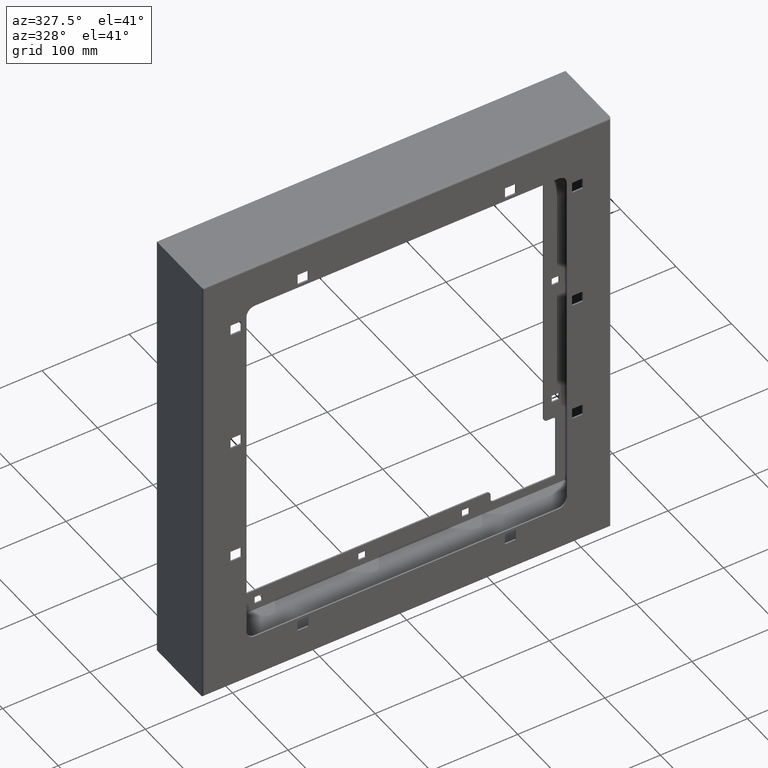
[diagram: clean part render]
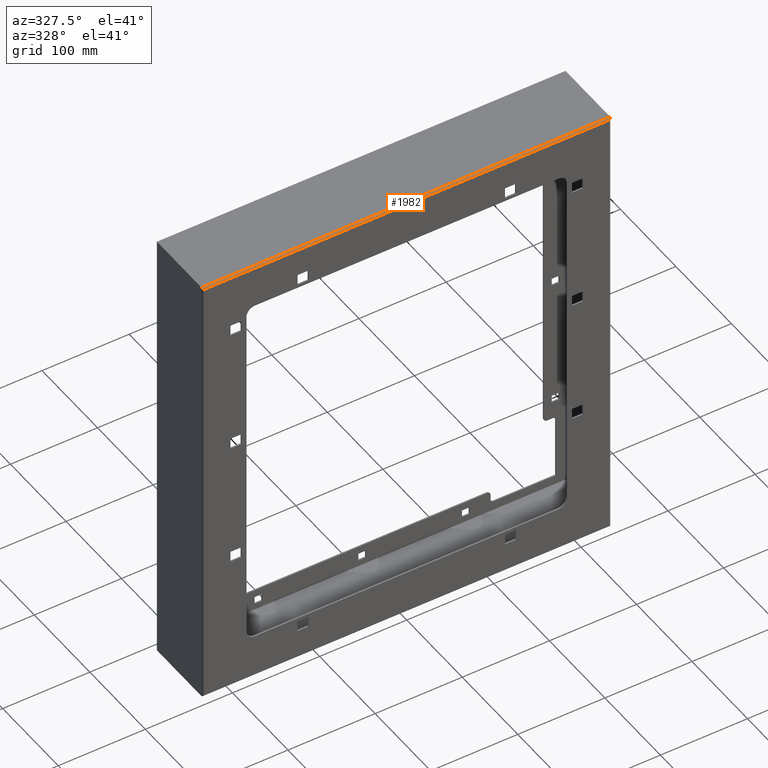
[diagram: same view with one face highlighted and labeled with its STEP entity id]
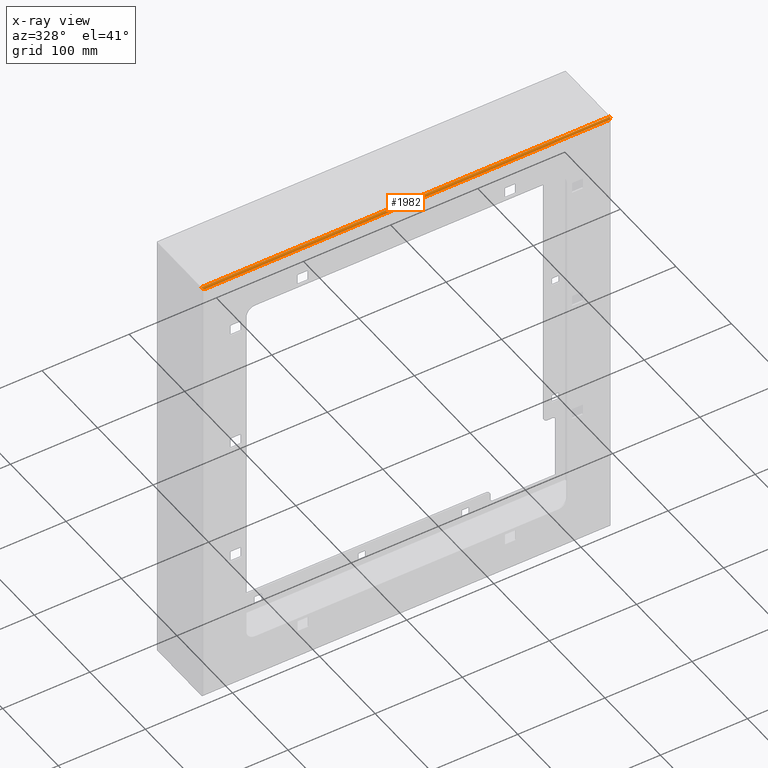
[diagram: x-ray of the same camera — body ghosted, the highlighted face saturated]
A machine part, auxiliary view. The second image highlights one B-rep face of the part: STEP entity #1982.
The next image is the same camera in x-ray: the body ghosted, the highlighted face saturated — about 0% of this face is hidden behind the body in this view.
In plain terms, the highlighted cylindrical surface (edge-blend (fillet) strip) has radius 2 mm, axis along (-1, 0, 0).
Its self-contained STEP definition (entity closure, byte-faithful):
#12 = CARTESIAN_POINT ( 'NONE',  ( 234.5000000000000300, 1.999999999999988000, 262.0000000000000000 ) ) ;
#130 = CARTESIAN_POINT ( 'NONE',  ( -234.5000000000000300, 1.999999999999988000, 262.0000000000000000 ) ) ;
#504 = CARTESIAN_POINT ( 'NONE',  ( 234.5000000000000300, 2.000000000000001800, 262.0000000000000000 ) ) ;
#508 = DIRECTION ( 'NONE',  ( 1.000000000000000000, 0.0000000000000000000, 0.0000000000000000000 ) ) ;
#521 = VERTEX_POINT ( 'NONE', #12 ) ;
#524 = VERTEX_POINT ( 'NONE', #130 ) ;
#1433 = DIRECTION ( 'NONE',  ( 0.0000000000000000000, 0.0000000000000000000, 1.000000000000000000 ) ) ;
#1434 = CARTESIAN_POINT ( 'NONE',  ( -234.5000000000000300, 2.000000000000001800, 260.0000000000000000 ) ) ;
#1435 = DIRECTION ( 'NONE',  ( -1.000000000000000000, 0.0000000000000000000, 0.0000000000000000000 ) ) ;
#1671 = AXIS2_PLACEMENT_3D ( 'NONE', #1434, #1435, #1433 ) ;
#1982 = ADVANCED_FACE ( 'NONE', ( #3846 ), #3851, .T. ) ;
#2551 = CARTESIAN_POINT ( 'NONE',  ( -234.5000000000000300, 0.0000000000000000000, 260.0000000000000000 ) ) ;
#2552 = DIRECTION ( 'NONE',  ( -1.000000000000000000, -0.0000000000000000000, -0.0000000000000000000 ) ) ;
#2665 = CARTESIAN_POINT ( 'NONE',  ( 232.5000000000000300, 0.0000000000000000000, 260.0000000000000000 ) ) ;
#2666 = CARTESIAN_POINT ( 'NONE',  ( -232.5000000000000300, 0.0000000000000000000, 260.0000000000000000 ) ) ;
#2829 = CARTESIAN_POINT ( 'NONE',  ( -234.5000000000000600, 0.8284271247461855200, 262.0000000000000600 ) ) ;
#2833 = CARTESIAN_POINT ( 'NONE',  ( 232.5000000000000300, 0.0000000000000000000, 260.0000000000000000 ) ) ;
#2834 = CARTESIAN_POINT ( 'NONE',  ( 233.6715728752538400, 1.953189899223894300E-015, 261.1715728752538400 ) ) ;
#2837 = CARTESIAN_POINT ( 'NONE',  ( -234.5000000000000300, 1.999999999999988000, 262.0000000000000000 ) ) ;
#2838 = CARTESIAN_POINT ( 'NONE',  ( -233.6715728752539000, 2.383618790718123400E-015, 261.1715728752538400 ) ) ;
#2839 = CARTESIAN_POINT ( 'NONE',  ( -232.5000000000000300, 0.0000000000000000000, 260.0000000000000000 ) ) ;
#2842 = CARTESIAN_POINT ( 'NONE',  ( 234.5000000000000300, 0.8284271247461844100, 262.0000000000000000 ) ) ;
#2843 = CARTESIAN_POINT ( 'NONE',  ( 234.5000000000000300, 1.999999999999988000, 262.0000000000000000 ) ) ;
#2917 =( BOUNDED_CURVE ( )  B_SPLINE_CURVE ( 3, ( #2837, #2829, #2838, #2839 ),
 .UNSPECIFIED., .F., .T. ) 
 B_SPLINE_CURVE_WITH_KNOTS ( ( 4, 4 ),
 ( 3.141592653589799800, 4.712388980384689700 ),
 .UNSPECIFIED. ) 
 CURVE ( )  GEOMETRIC_REPRESENTATION_ITEM ( )  RATIONAL_B_SPLINE_CURVE ( ( 1.000000000000000000, 0.8047378541243666000, 0.8047378541243666000, 1.000000000000000000 ) ) 
 REPRESENTATION_ITEM ( '' )  );
#2918 =( BOUNDED_CURVE ( )  B_SPLINE_CURVE ( 3, ( #2833, #2834, #2842, #2843 ),
 .UNSPECIFIED., .F., .T. ) 
 B_SPLINE_CURVE_WITH_KNOTS ( ( 4, 4 ),
 ( 4.712388980384689700, 6.283185307179579100 ),
 .UNSPECIFIED. ) 
 CURVE ( )  GEOMETRIC_REPRESENTATION_ITEM ( )  RATIONAL_B_SPLINE_CURVE ( ( 1.000000000000000000, 0.8047378541243667100, 0.8047378541243667100, 1.000000000000000000 ) ) 
 REPRESENTATION_ITEM ( '' )  );
#2945 = EDGE_CURVE ( 'NONE', #524, #521, #3403, .T. ) ;
#3125 = LINE ( 'NONE', #2551, #3128 ) ;
#3128 = VECTOR ( 'NONE', #2552, 1000.000000000000000 ) ;
#3403 = LINE ( 'NONE', #504, #3406 ) ;
#3406 = VECTOR ( 'NONE', #508, 1000.000000000000000 ) ;
#3846 = FACE_OUTER_BOUND ( 'NONE', #3965, .T. ) ;
#3851 = CYLINDRICAL_SURFACE ( 'NONE', #1671, 2.000000000000001800 ) ;
#3965 = EDGE_LOOP ( 'NONE', ( #4580, #4581, #4582, #4583 ) ) ;
#4090 = EDGE_CURVE ( 'NONE', #4223, #4220, #3125, .T. ) ;
#4220 = VERTEX_POINT ( 'NONE', #2666 ) ;
#4223 = VERTEX_POINT ( 'NONE', #2665 ) ;
#4340 = EDGE_CURVE ( 'NONE', #524, #4220, #2917, .T. ) ;
#4341 = EDGE_CURVE ( 'NONE', #4223, #521, #2918, .T. ) ;
#4580 = ORIENTED_EDGE ( 'NONE', *, *, #4340, .T. ) ;
#4581 = ORIENTED_EDGE ( 'NONE', *, *, #4090, .F. ) ;
#4582 = ORIENTED_EDGE ( 'NONE', *, *, #4341, .T. ) ;
#4583 = ORIENTED_EDGE ( 'NONE', *, *, #2945, .F. ) ;